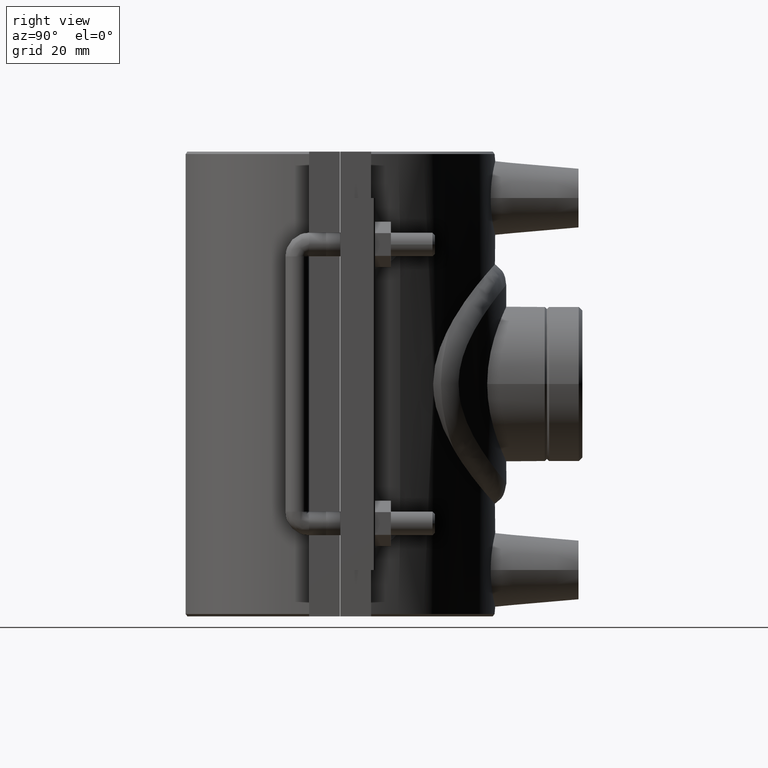
[diagram: clean part render]
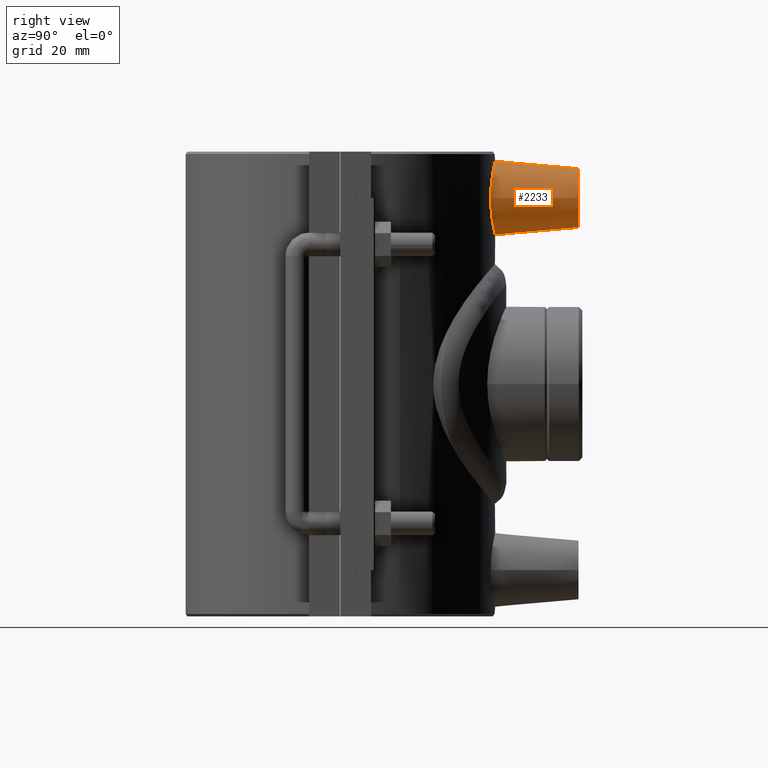
[diagram: same view with one face highlighted and labeled with its STEP entity id]
A machine part, right view. The second image highlights one B-rep face of the part: STEP entity #2233.
In plain terms, the highlighted conical surface has half-angle 5 deg.
Its self-contained STEP definition (entity closure, byte-faithful):
#19=CONICAL_SURFACE('',#2385,7.5,5.);
#95=FACE_BOUND('',#349,.T.);
#151=B_SPLINE_CURVE_WITH_KNOTS('',3,(#3641,#3642,#3643,#3644,#3645,#3646,
#3647,#3648,#3649,#3650,#3651,#3652,#3653,#3654,#3655,#3656,#3657,#3658,
#3659,#3660,#3661,#3662,#3663,#3664,#3665,#3666,#3667,#3668,#3669,#3670,
#3671,#3672,#3673,#3674),.UNSPECIFIED.,.T.,.F.,(4,2,2,2,2,2,2,2,2,2,2,2,
2,2,2,2,4),(0.,0.356014998471949,0.712029996943897,1.06709419230473,1.42215838766557,
1.7772225830264,2.13228677838723,2.48830177685918,2.84431677533113,3.20033177380308,
3.55634677227503,3.91141096763586,4.2664751629967,4.62153935835753,4.97660355371836,
5.33261855219031,5.68863355066226),.UNSPECIFIED.);
#202=FACE_OUTER_BOUND('',#348,.T.);
#348=EDGE_LOOP('',(#1664));
#349=EDGE_LOOP('',(#1665));
#889=CIRCLE('',#2386,7.5);
#1049=VERTEX_POINT('',#3638);
#1050=VERTEX_POINT('',#3640);
#1295=EDGE_CURVE('',#1049,#1049,#889,.T.);
#1296=EDGE_CURVE('',#1050,#1050,#151,.T.);
#1664=ORIENTED_EDGE('',*,*,#1295,.F.);
#1665=ORIENTED_EDGE('',*,*,#1296,.F.);
#2233=ADVANCED_FACE('',(#202,#95),#19,.T.);
#2385=AXIS2_PLACEMENT_3D('',#3637,#2738,#2739);
#2386=AXIS2_PLACEMENT_3D('',#3639,#2740,#2741);
#2738=DIRECTION('center_axis',(0.,-1.,0.));
#2739=DIRECTION('ref_axis',(1.,0.,0.));
#2740=DIRECTION('center_axis',(0.,1.,0.));
#2741=DIRECTION('ref_axis',(1.,0.,0.));
#3637=CARTESIAN_POINT('Origin',(0.,60.5,47.2));
#3638=CARTESIAN_POINT('',(-7.5,60.5,47.2));
#3639=CARTESIAN_POINT('Origin',(0.,60.5,47.2));
#3640=CARTESIAN_POINT('',(9.44885677958251,38.2244650787809,47.2));
#3641=CARTESIAN_POINT('Ctrl Pts',(-9.44885677958251,38.2244650787809,47.2));
#3642=CARTESIAN_POINT('Ctrl Pts',(-9.44885677958251,38.2244650787809,46.0132833384269));
#3643=CARTESIAN_POINT('Ctrl Pts',(-9.20641468561252,38.2868444369384,44.752476197349));
#3644=CARTESIAN_POINT('Ctrl Pts',(-8.23143659111838,38.5082325071646,42.443271999074));
#3645=CARTESIAN_POINT('Ctrl Pts',(-7.49923403788687,38.6636599373278,41.3943922368591));
#3646=CARTESIAN_POINT('Ctrl Pts',(-5.8213504145831,38.95157397346,39.7451610866894));
#3647=CARTESIAN_POINT('Ctrl Pts',(-4.76306580802813,39.1031880173406,39.0320549957885));
#3648=CARTESIAN_POINT('Ctrl Pts',(-2.44433362832232,39.3162986767516,38.0852741919757));
#3649=CARTESIAN_POINT('Ctrl Pts',(-1.18354731786945,39.375,37.8518019830149));
#3650=CARTESIAN_POINT('Ctrl Pts',(1.18354731786945,39.375,37.8518019830149));
#3651=CARTESIAN_POINT('Ctrl Pts',(2.44433362832233,39.3162986767516,38.0852741919757));
#3652=CARTESIAN_POINT('Ctrl Pts',(4.76306580802814,39.1031880173406,39.0320549957885));
#3653=CARTESIAN_POINT('Ctrl Pts',(5.8213504145831,38.95157397346,39.7451610866894));
#3654=CARTESIAN_POINT('Ctrl Pts',(7.49923403788688,38.6636599373278,41.3943922368591));
#3655=CARTESIAN_POINT('Ctrl Pts',(8.23143659111838,38.5082325071646,42.443271999074));
#3656=CARTESIAN_POINT('Ctrl Pts',(9.20641468561252,38.2868444369384,44.7524761973491));
#3657=CARTESIAN_POINT('Ctrl Pts',(9.44885677958251,38.2244650787809,46.0132833384269));
#3658=CARTESIAN_POINT('Ctrl Pts',(9.44885677958251,38.2244650787809,48.3867166615732));
#3659=CARTESIAN_POINT('Ctrl Pts',(9.20641468561253,38.2868444369384,49.647523802651));
#3660=CARTESIAN_POINT('Ctrl Pts',(8.23143659111839,38.5082325071646,51.956728000926));
#3661=CARTESIAN_POINT('Ctrl Pts',(7.49923403788688,38.6636599373278,53.0056077631409));
#3662=CARTESIAN_POINT('Ctrl Pts',(5.8213504145831,38.95157397346,54.6548389133106));
#3663=CARTESIAN_POINT('Ctrl Pts',(4.76306580802813,39.1031880173406,55.3679450042115));
#3664=CARTESIAN_POINT('Ctrl Pts',(2.44433362832232,39.3162986767516,56.3147258080244));
#3665=CARTESIAN_POINT('Ctrl Pts',(1.18354731786945,39.375,56.5481980169852));
#3666=CARTESIAN_POINT('Ctrl Pts',(-1.18354731786944,39.375,56.5481980169852));
#3667=CARTESIAN_POINT('Ctrl Pts',(-2.44433362832232,39.3162986767516,56.3147258080244));
#3668=CARTESIAN_POINT('Ctrl Pts',(-4.76306580802813,39.1031880173406,55.3679450042115));
#3669=CARTESIAN_POINT('Ctrl Pts',(-5.8213504145831,38.95157397346,54.6548389133106));
#3670=CARTESIAN_POINT('Ctrl Pts',(-7.49923403788688,38.6636599373278,53.0056077631409));
#3671=CARTESIAN_POINT('Ctrl Pts',(-8.23143659111838,38.5082325071646,51.956728000926));
#3672=CARTESIAN_POINT('Ctrl Pts',(-9.20641468561252,38.2868444369384,49.647523802651));
#3673=CARTESIAN_POINT('Ctrl Pts',(-9.44885677958251,38.2244650787809,48.3867166615732));
#3674=CARTESIAN_POINT('Ctrl Pts',(-9.44885677958251,38.2244650787809,47.2));